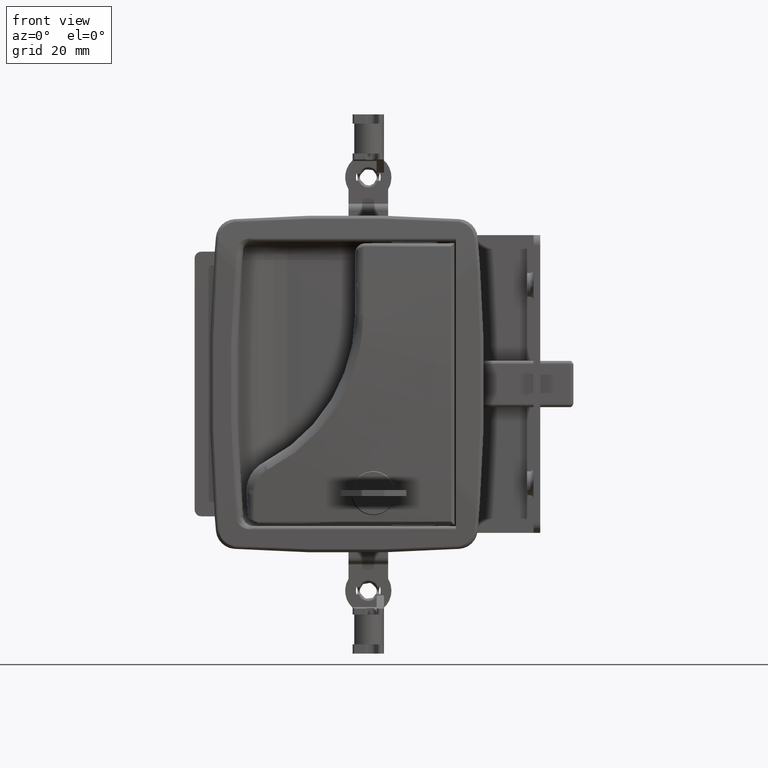
[diagram: clean part render]
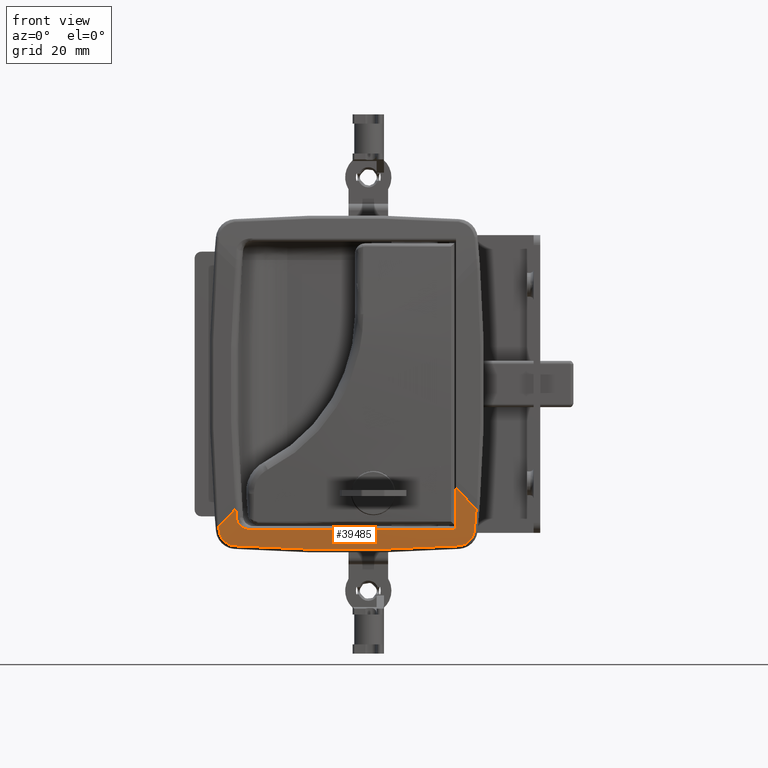
[diagram: same view with one face highlighted and labeled with its STEP entity id]
A machine part, front view. The second image highlights one B-rep face of the part: STEP entity #39485.
In plain terms, the highlighted face is a freeform B-spline surface patch.
Its self-contained STEP definition (entity closure, byte-faithful):
#33541=CARTESIAN_POINT('',(28.387863468607200,-32.204014228599000,44.058792561137487));
#33542=VERTEX_POINT('',#33541);
#33575=CARTESIAN_POINT('',(33.371643499226053,-32.404545543398100,40.510528911285462));
#33576=VERTEX_POINT('',#33575);
#33588=CARTESIAN_POINT('',(28.387863468607200,-32.204014228599000,44.058792561137487));
#33589=CARTESIAN_POINT('',(28.541054466573499,-32.204127594404753,44.056867910861072));
#33590=CARTESIAN_POINT('',(28.840447317282010,-32.204349153844610,44.053106420042774));
#33591=CARTESIAN_POINT('',(29.278485356426810,-32.206239190455932,44.021003963330308));
#33592=CARTESIAN_POINT('',(29.694651772525841,-32.209286255961622,43.969199065809427));
#33593=CARTESIAN_POINT('',(30.088956064546409,-32.213585289130023,43.896004944827610));
#33594=CARTESIAN_POINT('',(30.461410746447520,-32.219107162521027,43.801810959072142));
#33595=CARTESIAN_POINT('',(30.811975930937930,-32.225853667204717,43.686449903470823));
#33596=CARTESIAN_POINT('',(31.140753575710882,-32.233810934311087,43.549992964787947));
#33597=CARTESIAN_POINT('',(31.610060683327902,-32.247860983604440,43.308227658719922));
#33598=CARTESIAN_POINT('',(32.185125895847847,-32.271753757602852,42.894525202593933));
#33599=CARTESIAN_POINT('',(32.680317705088846,-32.303907487849187,42.329834400222751));
#33600=CARTESIAN_POINT('',(32.997968990768442,-32.332755207325143,41.816226651155993));
#33601=CARTESIAN_POINT('',(33.186339664505873,-32.356148154339941,41.395506707765293));
#33602=CARTESIAN_POINT('',(33.317935201262117,-32.380156381503461,40.959577057956459));
#33603=CARTESIAN_POINT('',(33.353717658346433,-32.396405344362222,40.660404553033239));
#33604=CARTESIAN_POINT('',(33.371643499226053,-32.404545543398100,40.510528911285462));
#33605=B_SPLINE_CURVE_WITH_KNOTS('',3,(#33588,#33589,#33590,#33591,#33592,#33593,#33594,#33595,#33596,#33597,#33598,#33599,#33600,#33601,#33602,#33603,#33604),.UNSPECIFIED.,.F.,.U.,(4,1,1,1,1,1,1,1,1,1,1,1,1,1,4),(0.0,0.067926117209538,0.132753191368139,0.194653115458896,0.253823298613706,0.310489686007934,0.364909418271115,0.417372681344911,0.468203180048742,0.598927022988627,0.728891035981030,0.798740564396038,0.866401877735308,0.933071709528644,1.0),.UNSPECIFIED.);
#33606=EDGE_CURVE('',#33542,#33576,#33605,.T.);
#33661=CARTESIAN_POINT('',(33.589340633227913,-32.550913217135957,37.709788944671850));
#33662=VERTEX_POINT('',#33661);
#33673=CARTESIAN_POINT('',(33.371643499226053,-32.404545543398100,40.510528911285462));
#33674=CARTESIAN_POINT('',(33.589340633227913,-32.550913217135957,37.709788944671850));
#33675=QUASI_UNIFORM_CURVE('',1,(#33673,#33674),.UNSPECIFIED.,.F.,.U.);
#33676=EDGE_CURVE('',#33576,#33662,#33675,.T.);
#33703=CARTESIAN_POINT('',(-33.0,-32.204014228599000,44.058792561137487));
#33704=VERTEX_POINT('',#33703);
#33721=CARTESIAN_POINT('',(-33.0,-32.204014228599000,44.058792561137487));
#33722=CARTESIAN_POINT('',(28.387863468607200,-32.204014228599000,44.058792561137487));
#33723=QUASI_UNIFORM_CURVE('',1,(#33721,#33722),.UNSPECIFIED.,.F.,.U.);
#33724=EDGE_CURVE('',#33704,#33542,#33723,.T.);
#34249=CARTESIAN_POINT('',(-33.922376438375252,-31.902460684280250,48.910830107962397));
#34250=VERTEX_POINT('',#34249);
#34261=CARTESIAN_POINT('',(33.922344062672003,-31.902451614480700,48.910968775648712));
#34262=VERTEX_POINT('',#34261);
#34263=CARTESIAN_POINT('',(33.922344062672003,-31.902451614480700,48.910968775648712));
#34264=CARTESIAN_POINT('',(22.614889062217038,-31.851991746246071,49.682445935504553));
#34265=CARTESIAN_POINT('',(-0.000019349817446,-31.799914257642751,50.451219742850881));
#34266=CARTESIAN_POINT('',(-22.614924605147781,-31.851997936552120,49.682353488885852));
#34267=CARTESIAN_POINT('',(-33.922376438375260,-31.902460684280250,48.910830107962298));
#34268=B_SPLINE_CURVE_WITH_KNOTS('',3,(#34263,#34264,#34265,#34266,#34267),.UNSPECIFIED.,.F.,.U.,(4,1,4),(0.0,0.500000000000000,1.0),.UNSPECIFIED.);
#34269=EDGE_CURVE('',#34262,#34250,#34268,.T.);
#34412=CARTESIAN_POINT('',(38.563370744402953,-32.186638289991002,44.352843200098398));
#34413=VERTEX_POINT('',#34412);
#34438=CARTESIAN_POINT('',(38.563370744402953,-32.186638289991002,44.352843200098398));
#34439=CARTESIAN_POINT('',(38.516358384335661,-32.153117769138937,44.903667234816467));
#34440=CARTESIAN_POINT('',(38.301522580822862,-32.102255939714823,45.735671158885062));
#34441=CARTESIAN_POINT('',(37.744610812095360,-32.040458433524797,46.738767944748567));
#34442=CARTESIAN_POINT('',(37.043183914165148,-31.987046542537609,47.599951937945143));
#34443=CARTESIAN_POINT('',(36.117381034127142,-31.943393771189449,48.294498650812429));
#34444=CARTESIAN_POINT('',(34.984946668256377,-31.913367497959040,48.759182158085537));
#34445=CARTESIAN_POINT('',(34.290643885613839,-31.904590217005659,48.885449131826192));
#34446=CARTESIAN_POINT('',(33.922344062672003,-31.902451614480700,48.910968775648712));
#34447=B_SPLINE_CURVE_WITH_KNOTS('',3,(#34438,#34439,#34440,#34441,#34442,#34443,#34444,#34445,#34446),.UNSPECIFIED.,.F.,.U.,(4,1,1,1,1,1,4),(0.000000048752537,1.661386666812287,2.547476167085000,3.433538031193336,4.984156164971249,5.981017974718013,7.088592991687306),.UNSPECIFIED.);
#34448=EDGE_CURVE('',#34413,#34262,#34447,.T.);
#34573=CARTESIAN_POINT('',(-38.563382875134899,-32.186646510036148,44.352704555915103));
#34574=VERTEX_POINT('',#34573);
#34585=CARTESIAN_POINT('',(-33.922376438375252,-31.902460684280250,48.910830107962397));
#34586=CARTESIAN_POINT('',(-34.474859449990980,-31.905768535867431,48.872681063425368));
#34587=CARTESIAN_POINT('',(-35.311691433189829,-31.919443650715841,48.671689272607267));
#34588=CARTESIAN_POINT('',(-36.390889110979067,-31.956150337007578,48.097288444347321));
#34589=CARTESIAN_POINT('',(-37.136347988587282,-31.994570438254229,47.484588590985567));
#34590=CARTESIAN_POINT('',(-37.767796461483520,-32.042591933296137,46.709791161240062));
#34591=CARTESIAN_POINT('',(-38.314093631512080,-32.104701910695979,45.699598312113871));
#34592=CARTESIAN_POINT('',(-38.519359789258893,-32.155463914027578,44.866761958186899));
#34593=CARTESIAN_POINT('',(-38.563382875134899,-32.186646510036148,44.352704555915103));
#34594=B_SPLINE_CURVE_WITH_KNOTS('',3,(#34585,#34586,#34587,#34588,#34589,#34590,#34591,#34592,#34593),.UNSPECIFIED.,.F.,.U.,(4,1,1,1,1,1,4),(0.000000048705733,1.661303893086662,2.547349239398551,3.654870912623542,4.540885161597826,5.537694839407100,7.088239817443832),.UNSPECIFIED.);
#34595=EDGE_CURVE('',#34250,#34574,#34594,.T.);
#34627=CARTESIAN_POINT('',(38.677998908116599,-32.264317573116649,43.022644933381848));
#34628=VERTEX_POINT('',#34627);
#34647=CARTESIAN_POINT('',(38.677998908116599,-32.264317573116649,43.022644933381848));
#34648=CARTESIAN_POINT('',(38.563370744402953,-32.186638289991002,44.352843200098398));
#34649=QUASI_UNIFORM_CURVE('',1,(#34647,#34648),.UNSPECIFIED.,.F.,.U.);
#34650=EDGE_CURVE('',#34628,#34413,#34649,.T.);
#34705=CARTESIAN_POINT('',(-39.093334689351451,-32.545855241958947,37.810043443753500));
#34706=VERTEX_POINT('',#34705);
#34717=CARTESIAN_POINT('',(-38.563382875134899,-32.186646510036148,44.352704555915103));
#34718=CARTESIAN_POINT('',(-39.093334689351451,-32.545855241958947,37.810043443753500));
#34719=QUASI_UNIFORM_CURVE('',1,(#34717,#34718),.UNSPECIFIED.,.F.,.U.);
#34720=EDGE_CURVE('',#34574,#34706,#34719,.T.);
#35779=CARTESIAN_POINT('',(33.589340633227913,-32.550913217135957,37.709788944671850));
#35780=CARTESIAN_POINT('',(38.677998908116599,-32.264317573116649,43.022644933381848));
#35781=QUASI_UNIFORM_CURVE('',1,(#35779,#35780),.UNSPECIFIED.,.F.,.U.);
#35782=EDGE_CURVE('',#33662,#34628,#35781,.T.);
#35808=CARTESIAN_POINT('',(-33.0,-32.840367138586949,31.443026923468651));
#35809=VERTEX_POINT('',#35808);
#35810=CARTESIAN_POINT('',(-39.093334689351451,-32.545855241958947,37.810043443753500));
#35811=CARTESIAN_POINT('',(-33.0,-32.840367138586949,31.443026923468651));
#35812=QUASI_UNIFORM_CURVE('',1,(#35810,#35811),.UNSPECIFIED.,.F.,.U.);
#35813=EDGE_CURVE('',#34706,#35809,#35812,.T.);
#38864=CARTESIAN_POINT('',(-33.0,-32.204014228599092,44.058792561137537));
#38865=CARTESIAN_POINT('',(-33.0,-32.575355489620875,37.753591432811184));
#38866=CARTESIAN_POINT('',(-33.0,-32.840367138587069,31.443026923468651));
#38874=(BOUNDED_CURVE()B_SPLINE_CURVE(2,(#38864,#38865,#38866),.UNSPECIFIED.,.F.,.U.)CURVE()GEOMETRIC_REPRESENTATION_ITEM()QUASI_UNIFORM_CURVE()RATIONAL_B_SPLINE_CURVE((1.0,0.999964483668521,1.0))REPRESENTATION_ITEM(''));
#38875=EDGE_CURVE('',#33704,#35809,#38874,.T.);
#39458=CARTESIAN_POINT('',(-41.037618029288168,-32.878872471697449,30.512324561011418));
#39459=CARTESIAN_POINT('',(40.670885693856398,-32.878872471697449,30.512324561011418));
#39460=CARTESIAN_POINT('',(-41.037618029288168,-32.461199294984915,40.762026066190060));
#39461=CARTESIAN_POINT('',(40.670885693856391,-32.461199294984915,40.762026066190060));
#39462=CARTESIAN_POINT('',(-41.037618029288161,-31.763125600177290,50.996454479366051));
#39463=CARTESIAN_POINT('',(40.670885693856384,-31.763125600177290,50.996454479366051));
#39471=(BOUNDED_SURFACE()B_SPLINE_SURFACE(1,2,((#39458,#39460,#39462),(#39459,#39461,#39463)),.UNSPECIFIED.,.F.,.F.,.U.)B_SPLINE_SURFACE_WITH_KNOTS((2,2),(3,3),(0.0,81.708503723144531),(19.146462845420839,39.664370131874087),.UNSPECIFIED.)GEOMETRIC_REPRESENTATION_ITEM()RATIONAL_B_SPLINE_SURFACE(((0.999383166458304,0.999140016729096,0.999084099182156),(0.999383166458304,0.999140016729096,0.999084099182156)))REPRESENTATION_ITEM('')SURFACE());
#39472=ORIENTED_EDGE('',*,*,#33606,.T.);
#39473=ORIENTED_EDGE('',*,*,#33676,.T.);
#39474=ORIENTED_EDGE('',*,*,#35782,.T.);
#39475=ORIENTED_EDGE('',*,*,#34650,.T.);
#39476=ORIENTED_EDGE('',*,*,#34448,.T.);
#39477=ORIENTED_EDGE('',*,*,#34269,.T.);
#39478=ORIENTED_EDGE('',*,*,#34595,.T.);
#39479=ORIENTED_EDGE('',*,*,#34720,.T.);
#39480=ORIENTED_EDGE('',*,*,#35813,.T.);
#39481=ORIENTED_EDGE('',*,*,#38875,.F.);
#39482=ORIENTED_EDGE('',*,*,#33724,.T.);
#39483=EDGE_LOOP('',(#39472,#39473,#39474,#39475,#39476,#39477,#39478,#39479,#39480,#39481,#39482));
#39484=FACE_OUTER_BOUND('',#39483,.T.);
#39485=ADVANCED_FACE('',(#39484),#39471,.T.);